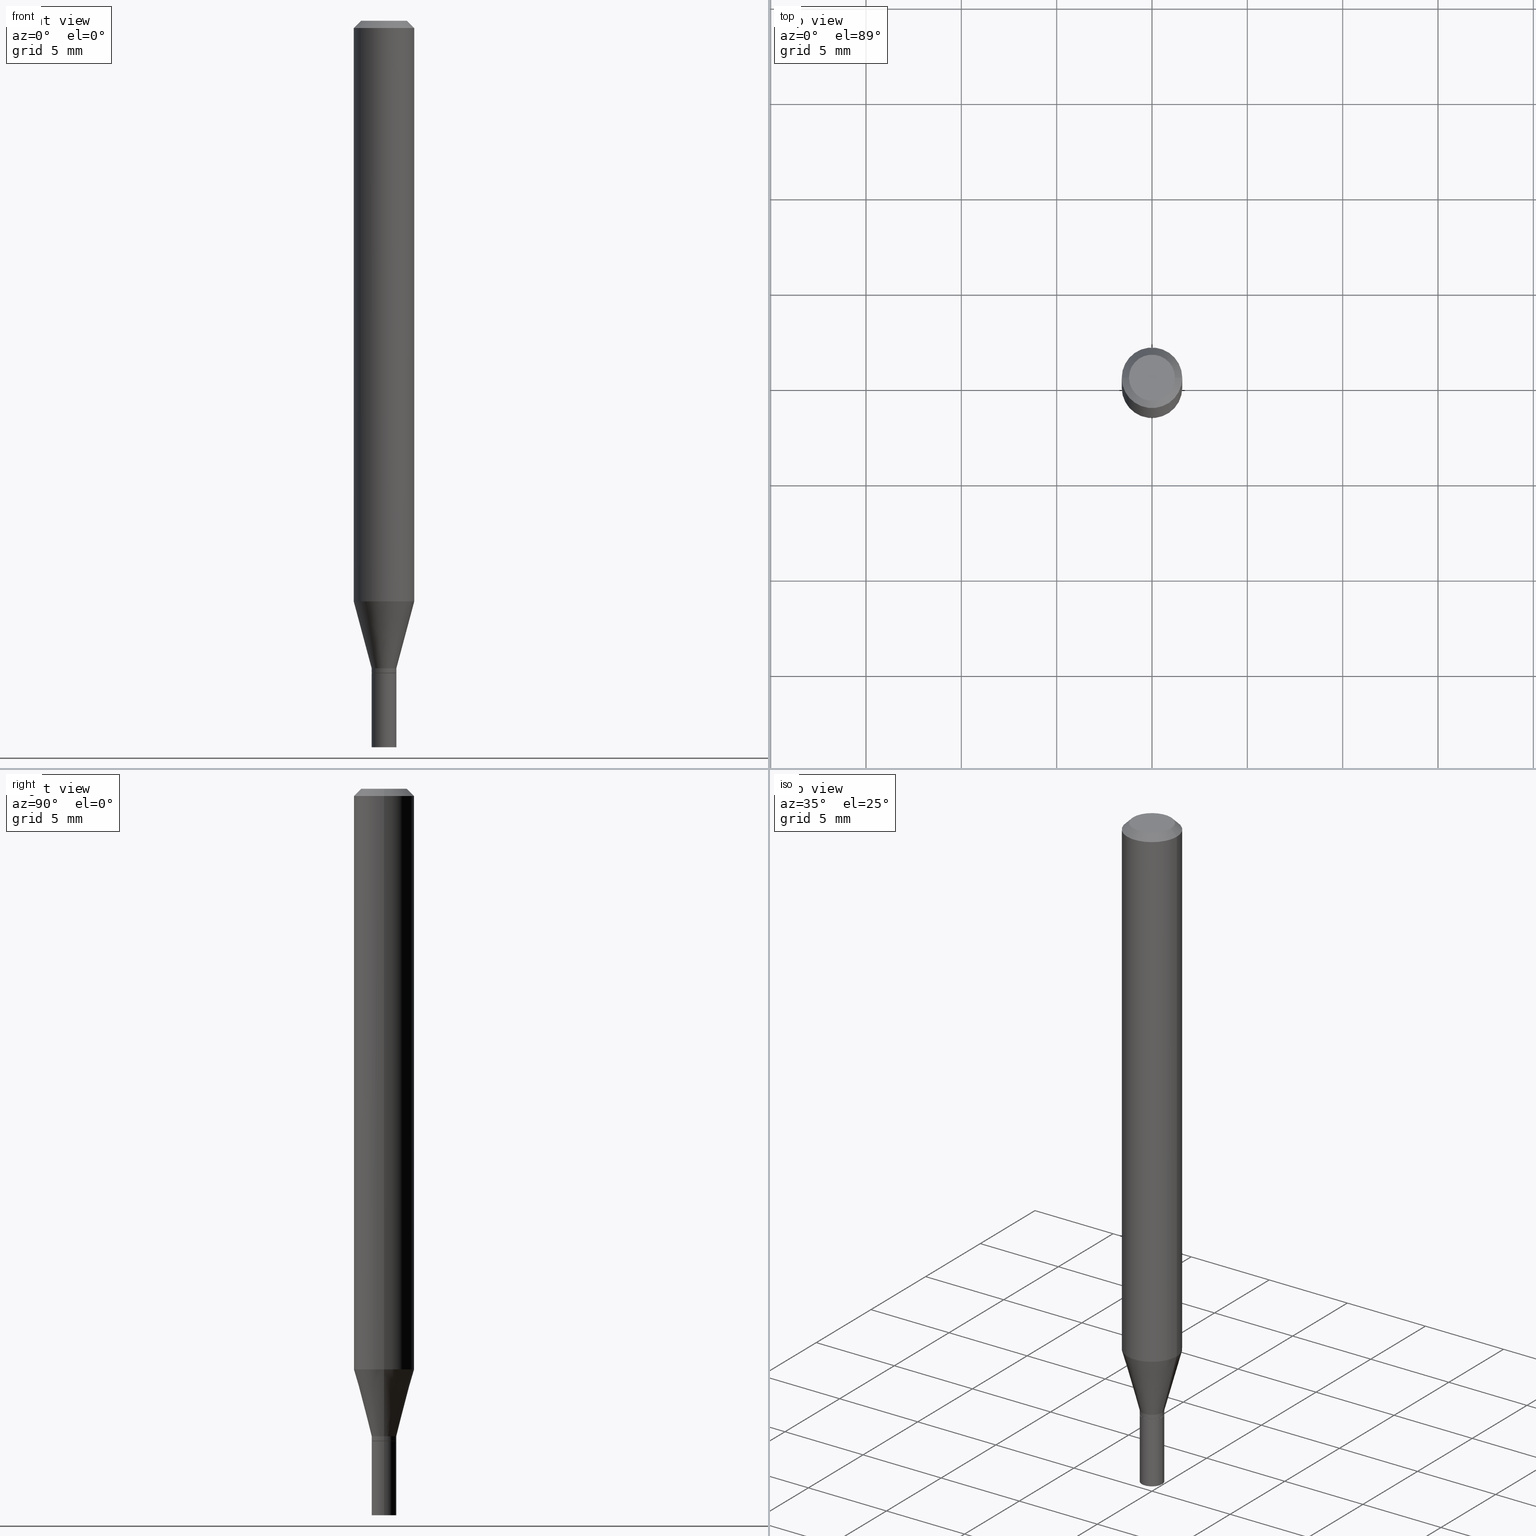
[diagram: canonical four-view strip — front | top / right | iso, engineering-drawing reading convention]
A machine part, canonical four-view strip (front | top / right | iso — engineering-drawing reading convention). The complete STEP part file that produces these views, byte-faithful:
ISO-10303-21;
HEADER;
FILE_DESCRIPTION (( 'STEP AP203' ),
    '1' );
FILE_NAME ('02446.STEP',
    '2024-03-18T20:38:47',
    ( '' ),
    ( '' ),
    'SwSTEP 2.0',
    'SolidWorks 2023',
    '' );
FILE_SCHEMA (( 'CONFIG_CONTROL_DESIGN' ));
ENDSEC;

DATA;
#1 = EDGE_LOOP ( 'NONE', ( #445, #239, #109, #463 ) ) ;
#2 = DIRECTION ( 'NONE',  ( 1.000000000000000000, -6.982962677686267499E-15, 4.852736867747366768E-29 ) ) ;
#3 = AXIS2_PLACEMENT_3D ( 'NONE', #390, #364, #92 ) ;
#4 = DIRECTION ( 'NONE',  ( -2.445468806185136597E-29, 3.491481338843145583E-15, 1.000000000000000000 ) ) ;
#5 = CARTESIAN_POINT ( 'NONE',  ( 3.294046481931379390E-29, -4.703025363421717574E-15, -1.347000000000000197 ) ) ;
#6 = CALENDAR_DATE ( 2024, 18, 3 ) ;
#7 = ORIENTED_EDGE ( 'NONE', *, *, #15, .F. ) ;
#8 = APPROVAL_ROLE ( '' ) ;
#9 = CARTESIAN_POINT ( 'NONE',  ( 0.000000000000000000, 0.000000000000000000, 0.000000000000000000 ) ) ;
#10 = APPROVAL_DATE_TIME ( #271, #136 ) ;
#11 = VERTEX_POINT ( 'NONE', #54 ) ;
#12 = CARTESIAN_POINT ( 'NONE',  ( -0.02499999999999999792, -4.522740452307581958E-15, -1.347000000000000197 ) ) ;
#13 = VECTOR ( 'NONE', #104, 39.37007874015748143 ) ;
#14 = ORIENTED_EDGE ( 'NONE', *, *, #322, .F. ) ;
#15 = EDGE_CURVE ( 'NONE', #181, #435, #58, .T. ) ;
#16 = CARTESIAN_POINT ( 'NONE',  ( 3.269591793869527285E-29, -4.668110550033285925E-15, -1.336999999999999966 ) ) ;
#17 = EDGE_CURVE ( 'NONE', #181, #381, #105, .T. ) ;
#18 = DIRECTION ( 'NONE',  ( -2.445468806185136597E-29, 3.491481338843145583E-15, 1.000000000000000000 ) ) ;
#19 = APPROVAL_STATUS ( 'not_yet_approved' ) ;
#20 = ORIENTED_EDGE ( 'NONE', *, *, #281, .T. ) ;
#21 = VECTOR ( 'NONE', #202, 39.37007874015748143 ) ;
#22 = ADVANCED_FACE ( 'NONE', ( #196 ), #80, .T. ) ;
#23 = DIRECTION ( 'NONE',  ( -2.445468806185136597E-29, 3.491481338843145583E-15, 1.000000000000000000 ) ) ;
#24 = DIRECTION ( 'NONE',  ( 1.000000000000000000, -6.982962677686258822E-15, 0.000000000000000000 ) ) ;
#25 = CARTESIAN_POINT ( 'NONE',  ( 1.338927666171699620E-44, -1.911633854693045944E-30, -5.475136966724958768E-16 ) ) ;
#26 = VECTOR ( 'NONE', #347, 39.37007874015748143 ) ;
#27 = DIRECTION ( 'NONE',  ( -2.445468806185136597E-29, 3.491481338843145583E-15, 1.000000000000000000 ) ) ;
#28 = CC_DESIGN_APPROVAL ( #337, ( #410 ) ) ;
#29 = CIRCLE ( 'NONE', #213, 0.02549999999999992203 ) ;
#30 = CARTESIAN_POINT ( 'NONE',  ( 3.294046481931379390E-29, -4.703025363421717574E-15, -1.347000000000000197 ) ) ;
#31 = DIRECTION ( 'NONE',  ( 1.000000000000000000, -6.982962677686258822E-15, 0.000000000000000000 ) ) ;
#32 = EDGE_CURVE ( 'NONE', #381, #181, #64, .T. ) ;
#33 = EDGE_LOOP ( 'NONE', ( #262, #149, #331, #69 ) ) ;
#34 = CONICAL_SURFACE ( 'NONE', #193, 0.02499999999999999792, 0.7853981633974739252 ) ;
#35 = ORIENTED_EDGE ( 'NONE', *, *, #230, .F. ) ;
#36 = FACE_OUTER_BOUND ( 'NONE', #373, .T. ) ;
#37 = CARTESIAN_POINT ( 'NONE',  ( 3.294046481931379390E-29, -4.703025363421717574E-15, -1.347000000000000197 ) ) ;
#38 = ORIENTED_EDGE ( 'NONE', *, *, #346, .T. ) ;
#39 = EDGE_CURVE ( 'NONE', #11, #381, #417, .T. ) ;
#40 = ORIENTED_EDGE ( 'NONE', *, *, #201, .T. ) ;
#41 = EDGE_CURVE ( 'NONE', #225, #465, #79, .T. ) ;
#42 = ORIENTED_EDGE ( 'NONE', *, *, #281, .F. ) ;
#43 = PLANE ( 'NONE',  #275 ) ;
#44 = DIRECTION ( 'NONE',  ( 1.000000000000000000, -6.982962677686258822E-15, 0.000000000000000000 ) ) ;
#45 = APPLICATION_PROTOCOL_DEFINITION ( 'international standard', 'config_control_design', 1994, #169 ) ;
#46 = DIRECTION ( 'NONE',  ( -2.445468806185136877E-29, 3.491481338843145188E-15, 1.000000000000000000 ) ) ;
#47 = VERTEX_POINT ( 'NONE', #279 ) ;
#48 = CC_DESIGN_PERSON_AND_ORGANIZATION_ASSIGNMENT ( #412, #235, ( #244 ) ) ;
#49 = ADVANCED_FACE ( 'NONE', ( #422 ), #153, .T. ) ;
#50 = VECTOR ( 'NONE', #452, 39.37007874015748143 ) ;
#51 = EDGE_LOOP ( 'NONE', ( #339, #236, #310, #272 ) ) ;
#52 = DIRECTION ( 'NONE',  ( -2.445468806185136597E-29, 3.491481338843145583E-15, 1.000000000000000000 ) ) ;
#53 = PERSON_AND_ORGANIZATION ( #366, #137 ) ;
#54 = CARTESIAN_POINT ( 'NONE',  ( 0.02549999999999992203, -4.879345171033294957E-15, -1.346500000000000252 ) ) ;
#55 = DIRECTION ( 'NONE',  ( -1.000000000000000000, 6.982962677686265922E-15, -4.876176775795935793E-29 ) ) ;
#56 = DIRECTION ( 'NONE',  ( 0.2588190451025211836, 1.565188264969622559E-15, 0.9659258262890679791 ) ) ;
#57 = ADVANCED_FACE ( 'NONE', ( #204 ), #166, .T. ) ;
#58 = LINE ( 'NONE', #270, #232 ) ;
#59 = AXIS2_PLACEMENT_3D ( 'NONE', #147, #409, #113 ) ;
#60 = CALENDAR_DATE ( 2024, 18, 3 ) ;
#61 = CARTESIAN_POINT ( 'NONE',  ( 0.02499999999999999792, -4.877599430363874242E-15, -1.347000000000000197 ) ) ;
#62 = DIRECTION ( 'NONE',  ( -2.445468806185136597E-29, 3.491481338843145583E-15, 1.000000000000000000 ) ) ;
#63 = CC_DESIGN_DATE_AND_TIME_ASSIGNMENT ( #383, #129, ( #323 ) ) ;
#64 = CIRCLE ( 'NONE', #146, 0.02549999999999992203 ) ;
#65 = DIRECTION ( 'NONE',  ( 1.000000000000000000, -6.982962677686266711E-15, 0.000000000000000000 ) ) ;
#66 = CARTESIAN_POINT ( 'NONE',  ( 3.668203209277705088E-31, -5.237222008264718399E-17, -0.01499999999999999944 ) ) ;
#67 = ADVANCED_FACE ( 'NONE', ( #206 ), #431, .F. ) ;
#68 = ORIENTED_EDGE ( 'NONE', *, *, #182, .F. ) ;
#69 = ORIENTED_EDGE ( 'NONE', *, *, #402, .F. ) ;
#70 = AXIS2_PLACEMENT_3D ( 'NONE', #249, #397, #65 ) ;
#71 = LOCAL_TIME ( 16, 38, 47.00000000000000000, #245 ) ;
#72 = ORIENTED_EDGE ( 'NONE', *, *, #231, .T. ) ;
#73 = CARTESIAN_POINT ( 'NONE',  ( 0.000000000000000000, 0.000000000000000000, 0.000000000000000000 ) ) ;
#74 = ORIENTED_EDGE ( 'NONE', *, *, #209, .F. ) ;
#75 = VECTOR ( 'NONE', #46, 39.37007874015748143 ) ;
#76 = EDGE_CURVE ( 'NONE', #333, #175, #443, .T. ) ;
#77 = CARTESIAN_POINT ( 'NONE',  ( 1.338927666171699620E-44, -1.911633854693045944E-30, -5.475136966724958768E-16 ) ) ;
#78 = FACE_OUTER_BOUND ( 'NONE', #33, .T. ) ;
#79 = CIRCLE ( 'NONE', #248, 0.02499999999999999792 ) ;
#80 = CYLINDRICAL_SURFACE ( 'NONE', #304, 0.02549999999999992203 ) ;
#81 = DIRECTION ( 'NONE',  ( 2.438088387897960049E-29, -3.491481338843145188E-15, -1.000000000000000000 ) ) ;
#82 = LINE ( 'NONE', #227, #75 ) ;
#83 = COORDINATED_UNIVERSAL_TIME_OFFSET ( 5, 0, .BEHIND. ) ;
#84 = EDGE_CURVE ( 'NONE', #365, #11, #451, .T. ) ;
#85 = EDGE_LOOP ( 'NONE', ( #229, #433, #257, #40 ) ) ;
#86 = ORIENTED_EDGE ( 'NONE', *, *, #187, .T. ) ;
#87 = COORDINATED_UNIVERSAL_TIME_OFFSET ( 5, 0, .BEHIND. ) ;
#88 = CARTESIAN_POINT ( 'NONE',  ( 0.02549999999999992203, -1.780655482809992805E-16, 1.243425077827959823E-30 ) ) ;
#89 = DIRECTION ( 'NONE',  ( -2.445468806185136877E-29, 3.491481338843145188E-15, 1.000000000000000000 ) ) ;
#90 = EDGE_LOOP ( 'NONE', ( #316, #174, #86, #437 ) ) ;
#91 = PERSON_AND_ORGANIZATION ( #366, #137 ) ;
#92 = DIRECTION ( 'NONE',  ( 1.000000000000000000, -6.982962677686275388E-15, 0.000000000000000000 ) ) ;
#93 = VECTOR ( 'NONE', #298, 39.37007874015748143 ) ;
#94 = CC_DESIGN_APPROVAL ( #136, ( #244 ) ) ;
#95 = DIRECTION ( 'NONE',  ( -2.438088387897960049E-29, 3.491481338843145188E-15, 1.000000000000000000 ) ) ;
#96 = CIRCLE ( 'NONE', #176, 0.02499999999999999792 ) ;
#97 = EDGE_CURVE ( 'NONE', #118, #441, #372, .T. ) ;
#98 = EDGE_CURVE ( 'NONE', #441, #297, #164, .T. ) ;
#99 = APPLICATION_CONTEXT ( 'configuration controlled 3d designs of mechanical parts and assemblies' ) ;
#100 = EDGE_CURVE ( 'NONE', #297, #295, #200, .T. ) ;
#101 = FACE_OUTER_BOUND ( 'NONE', #85, .T. ) ;
#102 = AXIS2_PLACEMENT_3D ( 'NONE', #9, #318, #453 ) ;
#103 = PERSON_AND_ORGANIZATION ( #366, #137 ) ;
#104 = DIRECTION ( 'NONE',  ( -2.445468806185136877E-29, 3.491481338843145188E-15, 1.000000000000000000 ) ) ;
#105 = CIRCLE ( 'NONE', #223, 0.02549999999999992203 ) ;
#106 = CC_DESIGN_PERSON_AND_ORGANIZATION_ASSIGNMENT ( #122, #269, ( #244 ) ) ;
#107 = ORIENTED_EDGE ( 'NONE', *, *, #41, .F. ) ;
#108 = FACE_OUTER_BOUND ( 'NONE', #90, .T. ) ;
#109 = ORIENTED_EDGE ( 'NONE', *, *, #230, .T. ) ;
#110 = DIRECTION ( 'NONE',  ( -2.445468806185136597E-29, 3.491481338843145583E-15, 1.000000000000000000 ) ) ;
#111 = ORIENTED_EDGE ( 'NONE', *, *, #160, .T. ) ;
#112 = CIRCLE ( 'NONE', #286, 0.02549999999999999836 ) ;
#113 = DIRECTION ( 'NONE',  ( 1.000000000000000000, -6.982962677686267499E-15, 4.876176775795935793E-29 ) ) ;
#114 = EDGE_LOOP ( 'NONE', ( #72, #20, #222, #184 ) ) ;
#115 = CARTESIAN_POINT ( 'NONE',  ( 0.02549999999999992203, -4.846176098314284811E-15, -1.336999999999999966 ) ) ;
#116 = EDGE_LOOP ( 'NONE', ( #388, #216, #305, #349 ) ) ;
#117 = CARTESIAN_POINT ( 'NONE',  ( 0.04749999999999999362, -4.035134999187587991E-16, -5.475136966724933130E-16 ) ) ;
#118 = VERTEX_POINT ( 'NONE', #246 ) ;
#119 =( GEOMETRIC_REPRESENTATION_CONTEXT ( 3 ) GLOBAL_UNCERTAINTY_ASSIGNED_CONTEXT ( ( #439 ) ) GLOBAL_UNIT_ASSIGNED_CONTEXT ( ( #307, #419, #276 ) ) REPRESENTATION_CONTEXT ( 'NONE', 'WORKASPACE' ) );
#120 = AXIS2_PLACEMENT_3D ( 'NONE', #250, #359, #291 ) ;
#121 = ADVANCED_FACE ( 'NONE', ( #101 ), #266, .T. ) ;
#122 = PERSON_AND_ORGANIZATION ( #366, #137 ) ;
#123 = ORIENTED_EDGE ( 'NONE', *, *, #308, .F. ) ;
#124 = COORDINATED_UNIVERSAL_TIME_OFFSET ( 5, 0, .BEHIND. ) ;
#125 = ORIENTED_EDGE ( 'NONE', *, *, #255, .T. ) ;
#126 = DIRECTION ( 'NONE',  ( -0.2588190451025211836, 5.211531920934547886E-15, 0.9659258262890679791 ) ) ;
#127 = DIRECTION ( 'NONE',  ( -0.7071067811865656694, 7.493145998870420424E-15, 0.7071067811865294761 ) ) ;
#128 = AXIS2_PLACEMENT_3D ( 'NONE', #362, #62, #31 ) ;
#129 = DATE_TIME_ROLE ( 'classification_date' ) ;
#130 = DIRECTION ( 'NONE',  ( -2.445468806185136597E-29, 3.491481338843145583E-15, 1.000000000000000000 ) ) ;
#131 = PERSON_AND_ORGANIZATION ( #366, #137 ) ;
#132 = DIRECTION ( 'NONE',  ( 1.000000000000000000, -6.982962677686266711E-15, 0.000000000000000000 ) ) ;
#133 = CARTESIAN_POINT ( 'NONE',  ( 0.02549999999999992203, -4.846176098314284811E-15, -1.336999999999999966 ) ) ;
#134 = DATE_AND_TIME ( #455, #71 ) ;
#135 = CARTESIAN_POINT ( 'NONE',  ( 3.668203209277705088E-31, -5.237222008264718399E-17, -0.01499999999999999944 ) ) ;
#136 = APPROVAL ( #148, 'UNSPECIFIED' ) ;
#137 = ORGANIZATION ( 'UNSPECIFIED', 'UNSPECIFIED', '' ) ;
#138 = AXIS2_PLACEMENT_3D ( 'NONE', #321, #428, #429 ) ;
#139 = DATE_AND_TIME ( #60, #336 ) ;
#140 = DIRECTION ( 'NONE',  ( -1.000000000000000000, 6.982962677686266711E-15, 0.000000000000000000 ) ) ;
#141 = LINE ( 'NONE', #430, #13 ) ;
#142 = LINE ( 'NONE', #61, #21 ) ;
#143 = ORIENTED_EDGE ( 'NONE', *, *, #177, .T. ) ;
#144 = CARTESIAN_POINT ( 'NONE',  ( 3.668203209277705088E-31, -5.237222008264718399E-17, -0.01499999999999999944 ) ) ;
#145 = EDGE_LOOP ( 'NONE', ( #42, #219, #143, #211 ) ) ;
#146 = AXIS2_PLACEMENT_3D ( 'NONE', #377, #313, #274 ) ;
#147 = CARTESIAN_POINT ( 'NONE',  ( 0.000000000000000000, 0.000000000000000000, 0.000000000000000000 ) ) ;
#148 = APPROVAL_STATUS ( 'not_yet_approved' ) ;
#149 = ORIENTED_EDGE ( 'NONE', *, *, #98, .T. ) ;
#150 = MANIFOLD_SOLID_BREP ( 'Body-Move/Copy2[2]', #436 ) ;
#151 = DIRECTION ( 'NONE',  ( 1.000000000000000000, -6.982962677686255667E-15, 0.000000000000000000 ) ) ;
#152 = ADVANCED_FACE ( 'NONE', ( #324 ), #163, .T. ) ;
#153 = CYLINDRICAL_SURFACE ( 'NONE', #338, 0.02549999999999999836 ) ;
#154 = AXIS2_PLACEMENT_3D ( 'NONE', #73, #218, #212 ) ;
#155 = CIRCLE ( 'NONE', #265, 0.02549999999999999836 ) ;
#156 = DIRECTION ( 'NONE',  ( -2.445468806185136597E-29, 3.491481338843145583E-15, 1.000000000000000000 ) ) ;
#157 = EDGE_LOOP ( 'NONE', ( #254, #161, #68, #408 ) ) ;
#158 = CARTESIAN_POINT ( 'NONE',  ( 0.000000000000000000, 0.000000000000000000, 0.000000000000000000 ) ) ;
#159 = LINE ( 'NONE', #133, #179 ) ;
#160 = EDGE_CURVE ( 'NONE', #47, #251, #112, .T. ) ;
#161 = ORIENTED_EDGE ( 'NONE', *, *, #15, .T. ) ;
#162 = CARTESIAN_POINT ( 'NONE',  ( 0.000000000000000000, 0.000000000000000000, 0.000000000000000000 ) ) ;
#163 = CONICAL_SURFACE ( 'NONE', #191, 0.02549999999999992203, 0.2617993877991499074 ) ;
#164 = LINE ( 'NONE', #456, #356 ) ;
#165 = CARTESIAN_POINT ( 'NONE',  ( -0.06250000000000000000, -1.675090038828441136E-15, -0.01499999999999999944 ) ) ;
#166 = CYLINDRICAL_SURFACE ( 'NONE', #120, 0.06250000000000000000 ) ;
#167 = ADVANCED_FACE ( 'NONE', ( #247 ), #457, .F. ) ;
#168 = AXIS2_PLACEMENT_3D ( 'NONE', #420, #156, #460 ) ;
#169 = APPLICATION_CONTEXT ( 'configuration controlled 3d designs of mechanical parts and assemblies' ) ;
#170 = DIRECTION ( 'NONE',  ( -2.445468806185136597E-29, 3.491481338843145583E-15, 1.000000000000000000 ) ) ;
#171 = DIRECTION ( 'NONE',  ( 1.000000000000000000, -6.982962677686265922E-15, 4.876176775795935793E-29 ) ) ;
#172 = CIRCLE ( 'NONE', #240, 0.04749999999999999362 ) ;
#173 = VECTOR ( 'NONE', #466, 39.37007874015748854 ) ;
#174 = ORIENTED_EDGE ( 'NONE', *, *, #322, .T. ) ;
#175 = VERTEX_POINT ( 'NONE', #327 ) ;
#176 = AXIS2_PLACEMENT_3D ( 'NONE', #382, #52, #282 ) ;
#177 = EDGE_CURVE ( 'NONE', #465, #11, #142, .T. ) ;
#178 = DIRECTION ( 'NONE',  ( -2.445468806185136597E-29, 3.491481338843145583E-15, 1.000000000000000000 ) ) ;
#179 = VECTOR ( 'NONE', #56, 39.37007874015748854 ) ;
#180 = ORIENTED_EDGE ( 'NONE', *, *, #160, .F. ) ;
#181 = VERTEX_POINT ( 'NONE', #226 ) ;
#182 = EDGE_CURVE ( 'NONE', #217, #435, #444, .T. ) ;
#183 = ADVANCED_FACE ( 'NONE', ( #186 ), #243, .T. ) ;
#184 = ORIENTED_EDGE ( 'NONE', *, *, #177, .F. ) ;
#185 = FACE_OUTER_BOUND ( 'NONE', #51, .T. ) ;
#186 = FACE_OUTER_BOUND ( 'NONE', #145, .T. ) ;
#187 = EDGE_CURVE ( 'NONE', #217, #297, #141, .T. ) ;
#188 = CARTESIAN_POINT ( 'NONE',  ( 3.294046481931379390E-29, -4.703025363421717574E-15, -1.347000000000000197 ) ) ;
#189 = LINE ( 'NONE', #277, #26 ) ;
#190 = EDGE_LOOP ( 'NONE', ( #264, #107 ) ) ;
#191 = AXIS2_PLACEMENT_3D ( 'NONE', #283, #210, #425 ) ;
#192 = APPROVAL_PERSON_ORGANIZATION ( #341, #136, #299 ) ;
#193 = AXIS2_PLACEMENT_3D ( 'NONE', #37, #411, #309 ) ;
#194 = DIRECTION ( 'NONE',  ( -2.445468806185136597E-29, 3.491481338843145583E-15, 1.000000000000000000 ) ) ;
#195 = DIRECTION ( 'NONE',  ( 1.000000000000000000, -6.982962677686275388E-15, 0.000000000000000000 ) ) ;
#196 = FACE_OUTER_BOUND ( 'NONE', #384, .T. ) ;
#197 = CARTESIAN_POINT ( 'NONE',  ( 0.000000000000000000, 0.000000000000000000, 0.000000000000000000 ) ) ;
#198 = MECHANICAL_CONTEXT ( 'NONE', #169, 'mechanical' ) ;
#199 = CONICAL_SURFACE ( 'NONE', #363, 0.06250000000000000000, 0.7853981633974667087 ) ;
#200 = CIRCLE ( 'NONE', #462, 0.06250000000000000000 ) ;
#201 = EDGE_CURVE ( 'NONE', #295, #297, #242, .T. ) ;
#202 = DIRECTION ( 'NONE',  ( 0.7071067811865656694, -2.468850131082446387E-15, 0.7071067811865294761 ) ) ;
#203 = VECTOR ( 'NONE', #127, 39.37007874015748143 ) ;
#204 = FACE_OUTER_BOUND ( 'NONE', #116, .T. ) ;
#205 = APPROVAL_PERSON_ORGANIZATION ( #53, #369, #278 ) ;
#206 = FACE_OUTER_BOUND ( 'NONE', #399, .T. ) ;
#207 = PRODUCT ( '02446', '02446', '', ( #198 ) ) ;
#208 = ADVANCED_FACE ( 'NONE', ( #368 ), #34, .T. ) ;
#209 = EDGE_CURVE ( 'NONE', #175, #333, #155, .T. ) ;
#210 = DIRECTION ( 'NONE',  ( -2.445468806185136597E-29, 3.491481338843145583E-15, 1.000000000000000000 ) ) ;
#211 = ORIENTED_EDGE ( 'NONE', *, *, #84, .F. ) ;
#212 = DIRECTION ( 'NONE',  ( 1.000000000000000000, -6.982962677686266711E-15, 4.876176775795935793E-29 ) ) ;
#213 = AXIS2_PLACEMENT_3D ( 'NONE', #332, #110, #438 ) ;
#214 = AXIS2_PLACEMENT_3D ( 'NONE', #66, #287, #140 ) ;
#215 = CC_DESIGN_DATE_AND_TIME_ASSIGNMENT ( #344, #407, ( #410 ) ) ;
#216 = ORIENTED_EDGE ( 'NONE', *, *, #300, .T. ) ;
#217 = VERTEX_POINT ( 'NONE', #273 ) ;
#218 = DIRECTION ( 'NONE',  ( -2.445468806185136597E-29, 3.491481338843145583E-15, 1.000000000000000000 ) ) ;
#219 = ORIENTED_EDGE ( 'NONE', *, *, #41, .T. ) ;
#220 = CYLINDRICAL_SURFACE ( 'NONE', #59, 0.02549999999999992203 ) ;
#221 = ADVANCED_FACE ( 'NONE', ( #415 ), #319, .T. ) ;
#222 = ORIENTED_EDGE ( 'NONE', *, *, #328, .F. ) ;
#223 = AXIS2_PLACEMENT_3D ( 'NONE', #16, #194, #44 ) ;
#224 = FACE_OUTER_BOUND ( 'NONE', #449, .T. ) ;
#225 = VERTEX_POINT ( 'NONE', #12 ) ;
#226 = CARTESIAN_POINT ( 'NONE',  ( -0.02549999999999992203, -4.114409609919379013E-15, -1.336999999999999966 ) ) ;
#227 = CARTESIAN_POINT ( 'NONE',  ( -0.06250000000000000000, 4.440892098500626162E-16, -3.074334431409316114E-30 ) ) ;
#228 = DIRECTION ( 'NONE',  ( -2.445468806185136597E-29, 3.491481338843145583E-15, 1.000000000000000000 ) ) ;
#229 = ORIENTED_EDGE ( 'NONE', *, *, #98, .F. ) ;
#230 = EDGE_CURVE ( 'NONE', #333, #47, #423, .T. ) ;
#231 = EDGE_CURVE ( 'NONE', #465, #225, #96, .T. ) ;
#232 = VECTOR ( 'NONE', #126, 39.37007874015748854 ) ;
#233 = CARTESIAN_POINT ( 'NONE',  ( 0.02499999999999999792, -4.877599430363874242E-15, -1.347000000000000197 ) ) ;
#234 = DIRECTION ( 'NONE',  ( 1.000000000000000000, -6.982962677686266711E-15, 4.876176775795935793E-29 ) ) ;
#235 = PERSON_AND_ORGANIZATION_ROLE ( 'design_supplier' ) ;
#236 = ORIENTED_EDGE ( 'NONE', *, *, #308, .T. ) ;
#237 = CARTESIAN_POINT ( 'NONE',  ( 0.02549999999999999836, -1.780655482809997982E-16, 1.243425077827963501E-30 ) ) ;
#238 = PERSON_AND_ORGANIZATION_ROLE ( 'classification_officer' ) ;
#239 = ORIENTED_EDGE ( 'NONE', *, *, #209, .T. ) ;
#240 = AXIS2_PLACEMENT_3D ( 'NONE', #77, #178, #2 ) ;
#241 = CARTESIAN_POINT ( 'NONE',  ( 2.931907082048241438E-29, -4.185986277274360030E-15, -1.198914120119951576 ) ) ;
#242 = CIRCLE ( 'NONE', #70, 0.06250000000000000000 ) ;
#243 = CONICAL_SURFACE ( 'NONE', #317, 0.02499999999999999792, 0.7853981633974739252 ) ;
#244 = PRODUCT_DEFINITION_FORMATION_WITH_SPECIFIED_SOURCE ( 'ANY', '', #207, .NOT_KNOWN. ) ;
#245 = COORDINATED_UNIVERSAL_TIME_OFFSET ( 5, 0, .BEHIND. ) ;
#246 = CARTESIAN_POINT ( 'NONE',  ( -0.04749999999999999362, 3.578768372314200645E-16, -5.475136966724983420E-16 ) ) ;
#247 = FACE_OUTER_BOUND ( 'NONE', #190, .T. ) ;
#248 = AXIS2_PLACEMENT_3D ( 'NONE', #188, #130, #151 ) ;
#249 = CARTESIAN_POINT ( 'NONE',  ( 3.668203209277705088E-31, -5.237222008264718399E-17, -0.01499999999999999944 ) ) ;
#250 = CARTESIAN_POINT ( 'NONE',  ( 0.000000000000000000, 0.000000000000000000, 0.000000000000000000 ) ) ;
#251 = VERTEX_POINT ( 'NONE', #376 ) ;
#252 = CARTESIAN_POINT ( 'NONE',  ( 1.780655482810327331E-16, 0.02549999999999529726, -1.347000000000000197 ) ) ;
#253 = ADVANCED_FACE ( 'NONE', ( #389 ), #352, .T. ) ;
#254 = ORIENTED_EDGE ( 'NONE', *, *, #32, .T. ) ;
#255 = EDGE_CURVE ( 'NONE', #381, #217, #159, .T. ) ;
#256 = DIRECTION ( 'NONE',  ( -2.438088387897960049E-29, 3.491481338843145188E-15, 1.000000000000000000 ) ) ;
#257 = ORIENTED_EDGE ( 'NONE', *, *, #402, .T. ) ;
#258 = CARTESIAN_POINT ( 'NONE',  ( -0.06250000000000000000, -3.741897067424298203E-15, -1.198914120119951576 ) ) ;
#259 = ORIENTED_EDGE ( 'NONE', *, *, #17, .T. ) ;
#260 = CARTESIAN_POINT ( 'NONE',  ( 0.02549999999999999836, -5.415287556545718640E-15, -1.500000000000000222 ) ) ;
#261 = DESIGN_CONTEXT ( 'detailed design', #99, 'design' ) ;
#262 = ORIENTED_EDGE ( 'NONE', *, *, #346, .F. ) ;
#263 = DIRECTION ( 'NONE',  ( 1.000000000000000000, -6.982962677686275388E-15, 0.000000000000000000 ) ) ;
#264 = ORIENTED_EDGE ( 'NONE', *, *, #231, .F. ) ;
#265 = AXIS2_PLACEMENT_3D ( 'NONE', #378, #385, #195 ) ;
#266 = CONICAL_SURFACE ( 'NONE', #214, 0.06250000000000000000, 0.7853981633974667087 ) ;
#267 = LOCAL_TIME ( 16, 38, 47.00000000000000000, #87 ) ;
#268 =( LENGTH_UNIT ( ) NAMED_UNIT ( * ) SI_UNIT ( $, .METRE. ) );
#269 = PERSON_AND_ORGANIZATION_ROLE ( 'creator' ) ;
#270 = CARTESIAN_POINT ( 'NONE',  ( -0.02549999999999992203, -4.486922152414460611E-15, -1.336999999999999966 ) ) ;
#271 = DATE_AND_TIME ( #6, #306 ) ;
#272 = ORIENTED_EDGE ( 'NONE', *, *, #39, .F. ) ;
#273 = CARTESIAN_POINT ( 'NONE',  ( 0.06250000000000000000, -4.622421444629751700E-15, -1.198914120119951576 ) ) ;
#274 = DIRECTION ( 'NONE',  ( 1.000000000000000000, -6.982962677686258822E-15, 0.000000000000000000 ) ) ;
#275 = AXIS2_PLACEMENT_3D ( 'NONE', #252, #81, #55 ) ;
#276 =( NAMED_UNIT ( * ) SI_UNIT ( $, .STERADIAN. ) SOLID_ANGLE_UNIT ( ) );
#277 = CARTESIAN_POINT ( 'NONE',  ( -0.02549999999999992203, 1.811883976188249934E-16, -1.254328448014996992E-30 ) ) ;
#278 = APPROVAL_ROLE ( '' ) ;
#279 = CARTESIAN_POINT ( 'NONE',  ( 0.02549999999999999836, -4.881090911702717249E-15, -1.347000000000000197 ) ) ;
#280 = APPLICATION_PROTOCOL_DEFINITION ( 'international standard', 'config_control_design', 1994, #99 ) ;
#281 = EDGE_CURVE ( 'NONE', #225, #365, #314, .T. ) ;
#282 = DIRECTION ( 'NONE',  ( 1.000000000000000000, -6.982962677686255667E-15, 0.000000000000000000 ) ) ;
#283 = CARTESIAN_POINT ( 'NONE',  ( 3.269591793869527285E-29, -4.668110550033285925E-15, -1.336999999999999966 ) ) ;
#284 = CARTESIAN_POINT ( 'NONE',  ( 3.294046481931379390E-29, -4.703025363421717574E-15, -1.347000000000000197 ) ) ;
#285 = AXIS2_PLACEMENT_3D ( 'NONE', #5, #301, #263 ) ;
#286 = AXIS2_PLACEMENT_3D ( 'NONE', #284, #290, #427 ) ;
#287 = DIRECTION ( 'NONE',  ( 2.445468806185136597E-29, -3.491481338843145583E-15, -1.000000000000000000 ) ) ;
#288 = SHAPE_DEFINITION_REPRESENTATION ( #357, #387 ) ;
#289 = APPROVAL_DATE_TIME ( #139, #337 ) ;
#290 = DIRECTION ( 'NONE',  ( -2.445468806185136597E-29, 3.491481338843145583E-15, 1.000000000000000000 ) ) ;
#291 = DIRECTION ( 'NONE',  ( 1.000000000000000000, -6.982962677686266711E-15, 4.876176775795935793E-29 ) ) ;
#292 = CLOSED_SHELL ( 'NONE', ( #49, #393, #221, #464 ) ) ;
#293 = PLANE ( 'NONE',  #426 ) ;
#294 = EDGE_LOOP ( 'NONE', ( #375, #413, #180, #35 ) ) ;
#295 = VERTEX_POINT ( 'NONE', #165 ) ;
#296 = CC_DESIGN_APPROVAL ( #369, ( #323 ) ) ;
#297 = VERTEX_POINT ( 'NONE', #320 ) ;
#298 = DIRECTION ( 'NONE',  ( -2.445468806185136877E-29, 3.491481338843145188E-15, 1.000000000000000000 ) ) ;
#299 = APPROVAL_ROLE ( '' ) ;
#300 = EDGE_CURVE ( 'NONE', #435, #295, #82, .T. ) ;
#301 = DIRECTION ( 'NONE',  ( -2.445468806185136597E-29, 3.491481338843145583E-15, 1.000000000000000000 ) ) ;
#302 = DIRECTION ( 'NONE',  ( 1.000000000000000000, -6.982962677686266711E-15, 4.876176775795935793E-29 ) ) ;
#303 = PERSON_AND_ORGANIZATION_ROLE ( 'design_owner' ) ;
#304 = AXIS2_PLACEMENT_3D ( 'NONE', #158, #228, #353 ) ;
#305 = ORIENTED_EDGE ( 'NONE', *, *, #100, .F. ) ;
#306 = LOCAL_TIME ( 16, 38, 47.00000000000000000, #83 ) ;
#307 =( CONVERSION_BASED_UNIT ( 'INCH', #311 ) LENGTH_UNIT ( ) NAMED_UNIT ( #379 ) );
#308 = EDGE_CURVE ( 'NONE', #365, #181, #189, .T. ) ;
#309 = DIRECTION ( 'NONE',  ( 1.000000000000000000, -6.982962677686255667E-15, 0.000000000000000000 ) ) ;
#310 = ORIENTED_EDGE ( 'NONE', *, *, #32, .F. ) ;
#311 = LENGTH_MEASURE_WITH_UNIT ( LENGTH_MEASURE( 0.02539999999999999897 ), #268 );
#312 = LOCAL_TIME ( 16, 38, 47.00000000000000000, #124 ) ;
#313 = DIRECTION ( 'NONE',  ( -2.445468806185136597E-29, 3.491481338843145583E-15, 1.000000000000000000 ) ) ;
#314 = LINE ( 'NONE', #450, #203 ) ;
#315 = CC_DESIGN_PERSON_AND_ORGANIZATION_ASSIGNMENT ( #131, #303, ( #207 ) ) ;
#316 = ORIENTED_EDGE ( 'NONE', *, *, #300, .F. ) ;
#317 = AXIS2_PLACEMENT_3D ( 'NONE', #30, #170, #326 ) ;
#318 = DIRECTION ( 'NONE',  ( 0.000000000000000000, 0.000000000000000000, 1.000000000000000000 ) ) ;
#319 = CYLINDRICAL_SURFACE ( 'NONE', #403, 0.02549999999999999836 ) ;
#320 = CARTESIAN_POINT ( 'NONE',  ( 0.06250000000000000000, -4.888073874380388472E-16, -0.01499999999999999944 ) ) ;
#321 = CARTESIAN_POINT ( 'NONE',  ( 3.316907271900976096E-16, 0.04749999999999999362, -4.396022119312973841E-16 ) ) ;
#322 = EDGE_CURVE ( 'NONE', #435, #217, #354, .T. ) ;
#323 = SECURITY_CLASSIFICATION ( '', '', #424 ) ;
#324 = FACE_OUTER_BOUND ( 'NONE', #414, .T. ) ;
#325 = VECTOR ( 'NONE', #89, 39.37007874015748143 ) ;
#326 = DIRECTION ( 'NONE',  ( 1.000000000000000000, -6.982962677686255667E-15, 0.000000000000000000 ) ) ;
#327 = CARTESIAN_POINT ( 'NONE',  ( -0.02549999999999999836, -4.788935288224391773E-15, -1.500000000000000222 ) ) ;
#328 = EDGE_CURVE ( 'NONE', #11, #365, #29, .T. ) ;
#329 = CIRCLE ( 'NONE', #285, 0.02549999999999999836 ) ;
#330 = AXIS2_PLACEMENT_3D ( 'NONE', #395, #95, #171 ) ;
#331 = ORIENTED_EDGE ( 'NONE', *, *, #100, .T. ) ;
#332 = CARTESIAN_POINT ( 'NONE',  ( 3.292823747528287150E-29, -4.701279622752296071E-15, -1.346500000000000252 ) ) ;
#333 = VERTEX_POINT ( 'NONE', #260 ) ;
#334 = DIRECTION ( 'NONE',  ( 1.000000000000000000, -6.982962677686265922E-15, 4.876176775795935793E-29 ) ) ;
#335 = ORIENTED_EDGE ( 'NONE', *, *, #97, .T. ) ;
#336 = LOCAL_TIME ( 16, 38, 47.00000000000000000, #442 ) ;
#337 = APPROVAL ( #342, 'UNSPECIFIED' ) ;
#338 = AXIS2_PLACEMENT_3D ( 'NONE', #197, #355, #302 ) ;
#339 = ORIENTED_EDGE ( 'NONE', *, *, #328, .T. ) ;
#340 = CYLINDRICAL_SURFACE ( 'NONE', #154, 0.06250000000000000000 ) ;
#341 = PERSON_AND_ORGANIZATION ( #366, #137 ) ;
#342 = APPROVAL_STATUS ( 'not_yet_approved' ) ;
#343 = DIRECTION ( 'NONE',  ( -1.000000000000000000, 6.982962677686266711E-15, 0.000000000000000000 ) ) ;
#344 = DATE_AND_TIME ( #370, #312 ) ;
#345 = ORIENTED_EDGE ( 'NONE', *, *, #17, .F. ) ;
#346 = EDGE_CURVE ( 'NONE', #441, #118, #172, .T. ) ;
#347 = DIRECTION ( 'NONE',  ( -2.445468806185136877E-29, 3.491481338843145188E-15, 1.000000000000000000 ) ) ;
#348 = ADVANCED_FACE ( 'NONE', ( #185 ), #220, .T. ) ;
#349 = ORIENTED_EDGE ( 'NONE', *, *, #187, .F. ) ;
#350 = ORIENTED_EDGE ( 'NONE', *, *, #459, .T. ) ;
#351 = CARTESIAN_POINT ( 'NONE',  ( 3.269591793869527285E-29, -4.668110550033285925E-15, -1.336999999999999966 ) ) ;
#352 = CONICAL_SURFACE ( 'NONE', #360, 0.02549999999999992203, 0.2617993877991499074 ) ;
#353 = DIRECTION ( 'NONE',  ( 1.000000000000000000, -6.982962677686267499E-15, 4.876176775795935793E-29 ) ) ;
#354 = CIRCLE ( 'NONE', #168, 0.06250000000000000000 ) ;
#355 = DIRECTION ( 'NONE',  ( -2.445468806185136597E-29, 3.491481338843145583E-15, 1.000000000000000000 ) ) ;
#356 = VECTOR ( 'NONE', #361, 39.37007874015748854 ) ;
#357 = PRODUCT_DEFINITION_SHAPE ( 'NONE', 'NONE',  #410 ) ;
#358 = DIRECTION ( 'NONE',  ( -2.445468806185136597E-29, 3.491481338843145583E-15, 1.000000000000000000 ) ) ;
#359 = DIRECTION ( 'NONE',  ( -2.445468806185136597E-29, 3.491481338843145583E-15, 1.000000000000000000 ) ) ;
#360 = AXIS2_PLACEMENT_3D ( 'NONE', #351, #18, #24 ) ;
#361 = DIRECTION ( 'NONE',  ( 0.7071067811865604513, -7.319954787623298644E-15, -0.7071067811865343611 ) ) ;
#362 = CARTESIAN_POINT ( 'NONE',  ( 3.292823747528287150E-29, -4.701279622752296071E-15, -1.346500000000000252 ) ) ;
#363 = AXIS2_PLACEMENT_3D ( 'NONE', #144, #404, #343 ) ;
#364 = DIRECTION ( 'NONE',  ( -2.445468806185136597E-29, 3.491481338843145583E-15, 1.000000000000000000 ) ) ;
#365 = VERTEX_POINT ( 'NONE', #406 ) ;
#366 = PERSON ( 'UNSPECIFIED', 'UNSPECIFIED', 'UNSPECIFIED', ('UNSPECIFIED'), ('UNSPECIFIED'), ('UNSPECIFIED') ) ;
#367 = CARTESIAN_POINT ( 'NONE',  ( -0.06250000000000000000, 3.840629472727444916E-16, -0.01499999999999999944 ) ) ;
#368 = FACE_OUTER_BOUND ( 'NONE', #114, .T. ) ;
#369 = APPROVAL ( #19, 'UNSPECIFIED' ) ;
#370 = CALENDAR_DATE ( 2024, 18, 3 ) ;
#371 = CARTESIAN_POINT ( 'NONE',  ( -0.02549999999999999836, 1.811883976188255358E-16, -1.254328448015001021E-30 ) ) ;
#372 = CIRCLE ( 'NONE', #391, 0.04749999999999999362 ) ;
#373 = EDGE_LOOP ( 'NONE', ( #440, #74 ) ) ;
#374 = DIRECTION ( 'NONE',  ( 1.000000000000000000, -6.982962677686262766E-15, 0.000000000000000000 ) ) ;
#375 = ORIENTED_EDGE ( 'NONE', *, *, #76, .T. ) ;
#376 = CARTESIAN_POINT ( 'NONE',  ( -0.02549999999999999836, -4.788935288224391773E-15, -1.347000000000000197 ) ) ;
#377 = CARTESIAN_POINT ( 'NONE',  ( 3.269591793869527285E-29, -4.668110550033285925E-15, -1.336999999999999966 ) ) ;
#378 = CARTESIAN_POINT ( 'NONE',  ( 3.668203209277704895E-29, -5.237222008264718177E-15, -1.500000000000000222 ) ) ;
#379 = DIMENSIONAL_EXPONENTS ( 1.000000000000000000, 0.000000000000000000, 0.000000000000000000, 0.000000000000000000, 0.000000000000000000, 0.000000000000000000, 0.000000000000000000 ) ;
#380 = AXIS2_PLACEMENT_3D ( 'NONE', #241, #4, #374 ) ;
#381 = VERTEX_POINT ( 'NONE', #115 ) ;
#382 = CARTESIAN_POINT ( 'NONE',  ( 3.294046481931379390E-29, -4.703025363421717574E-15, -1.347000000000000197 ) ) ;
#383 = DATE_AND_TIME ( #386, #267 ) ;
#384 = EDGE_LOOP ( 'NONE', ( #123, #405, #447, #345 ) ) ;
#385 = DIRECTION ( 'NONE',  ( -2.445468806185136597E-29, 3.491481338843145583E-15, 1.000000000000000000 ) ) ;
#386 = CALENDAR_DATE ( 2024, 18, 3 ) ;
#387 = ADVANCED_BREP_SHAPE_REPRESENTATION ( '02446', ( #461, #150, #102 ), #119 ) ;
#388 = ORIENTED_EDGE ( 'NONE', *, *, #182, .T. ) ;
#389 = FACE_OUTER_BOUND ( 'NONE', #157, .T. ) ;
#390 = CARTESIAN_POINT ( 'NONE',  ( 3.668203209277704895E-29, -5.237222008264718177E-15, -1.500000000000000222 ) ) ;
#391 = AXIS2_PLACEMENT_3D ( 'NONE', #25, #27, #394 ) ;
#392 = CC_DESIGN_PERSON_AND_ORGANIZATION_ASSIGNMENT ( #103, #396, ( #410 ) ) ;
#393 = ADVANCED_FACE ( 'NONE', ( #36 ), #293, .F. ) ;
#394 = DIRECTION ( 'NONE',  ( 1.000000000000000000, -6.982962677686267499E-15, 4.852736867747366768E-29 ) ) ;
#395 = CARTESIAN_POINT ( 'NONE',  ( 3.294046481931379390E-29, -4.703025363421717574E-15, -1.347000000000000197 ) ) ;
#396 = PERSON_AND_ORGANIZATION_ROLE ( 'creator' ) ;
#397 = DIRECTION ( 'NONE',  ( -2.445468806185136597E-29, 3.491481338843145583E-15, 1.000000000000000000 ) ) ;
#398 = LINE ( 'NONE', #371, #93 ) ;
#399 = EDGE_LOOP ( 'NONE', ( #335, #38 ) ) ;
#400 = LINE ( 'NONE', #367, #173 ) ;
#401 = APPROVAL_PERSON_ORGANIZATION ( #91, #337, #8 ) ;
#402 = EDGE_CURVE ( 'NONE', #118, #295, #400, .T. ) ;
#403 = AXIS2_PLACEMENT_3D ( 'NONE', #162, #358, #234 ) ;
#404 = DIRECTION ( 'NONE',  ( 2.445468806185136597E-29, -3.491481338843145583E-15, -1.000000000000000000 ) ) ;
#405 = ORIENTED_EDGE ( 'NONE', *, *, #84, .T. ) ;
#406 = CARTESIAN_POINT ( 'NONE',  ( -0.02549999999999992203, -4.520091225133471546E-15, -1.346500000000000252 ) ) ;
#407 = DATE_TIME_ROLE ( 'creation_date' ) ;
#408 = ORIENTED_EDGE ( 'NONE', *, *, #255, .F. ) ;
#409 = DIRECTION ( 'NONE',  ( -2.445468806185136597E-29, 3.491481338843145583E-15, 1.000000000000000000 ) ) ;
#410 = PRODUCT_DEFINITION ( 'UNKNOWN', '', #244, #261 ) ;
#411 = DIRECTION ( 'NONE',  ( -2.445468806185136597E-29, 3.491481338843145583E-15, 1.000000000000000000 ) ) ;
#412 = PERSON_AND_ORGANIZATION ( #366, #137 ) ;
#413 = ORIENTED_EDGE ( 'NONE', *, *, #446, .T. ) ;
#414 = EDGE_LOOP ( 'NONE', ( #7, #259, #125, #14 ) ) ;
#415 = FACE_OUTER_BOUND ( 'NONE', #1, .T. ) ;
#416 = PERSON_AND_ORGANIZATION ( #366, #137 ) ;
#417 = LINE ( 'NONE', #88, #50 ) ;
#418 = CC_DESIGN_SECURITY_CLASSIFICATION ( #323, ( #244 ) ) ;
#419 =( NAMED_UNIT ( * ) PLANE_ANGLE_UNIT ( ) SI_UNIT ( $, .RADIAN. ) );
#420 = CARTESIAN_POINT ( 'NONE',  ( 2.931907082048241438E-29, -4.185986277274360030E-15, -1.198914120119951576 ) ) ;
#421 = APPROVAL_DATE_TIME ( #134, #369 ) ;
#422 = FACE_OUTER_BOUND ( 'NONE', #294, .T. ) ;
#423 = LINE ( 'NONE', #237, #325 ) ;
#424 = SECURITY_CLASSIFICATION_LEVEL ( 'unclassified' ) ;
#425 = DIRECTION ( 'NONE',  ( 1.000000000000000000, -6.982962677686258822E-15, 0.000000000000000000 ) ) ;
#426 = AXIS2_PLACEMENT_3D ( 'NONE', #432, #256, #334 ) ;
#427 = DIRECTION ( 'NONE',  ( 1.000000000000000000, -6.982962677686275388E-15, 0.000000000000000000 ) ) ;
#428 = DIRECTION ( 'NONE',  ( 2.438088387897960049E-29, -3.491481338843145188E-15, -1.000000000000000000 ) ) ;
#429 = DIRECTION ( 'NONE',  ( -1.000000000000000000, 6.982962677686265922E-15, -4.876176775795935793E-29 ) ) ;
#430 = CARTESIAN_POINT ( 'NONE',  ( 0.06250000000000000000, -4.364351673553916694E-16, 3.047610484872459871E-30 ) ) ;
#431 = PLANE ( 'NONE',  #138 ) ;
#432 = CARTESIAN_POINT ( 'NONE',  ( 3.576687321579069994E-29, -5.368277968210015545E-15, -1.500000000000000222 ) ) ;
#433 = ORIENTED_EDGE ( 'NONE', *, *, #97, .F. ) ;
#434 = PRODUCT_RELATED_PRODUCT_CATEGORY ( 'detail', '', ( #207 ) ) ;
#435 = VERTEX_POINT ( 'NONE', #258 ) ;
#436 = CLOSED_SHELL ( 'NONE', ( #348, #208, #448, #57, #253, #152, #454, #121, #67, #167, #183, #22 ) ) ;
#437 = ORIENTED_EDGE ( 'NONE', *, *, #201, .F. ) ;
#438 = DIRECTION ( 'NONE',  ( 1.000000000000000000, -6.982962677686258822E-15, 0.000000000000000000 ) ) ;
#439 = UNCERTAINTY_MEASURE_WITH_UNIT (LENGTH_MEASURE( 1.000000000000000082E-05 ), #307, 'distance_accuracy_value', 'NONE');
#440 = ORIENTED_EDGE ( 'NONE', *, *, #76, .F. ) ;
#441 = VERTEX_POINT ( 'NONE', #117 ) ;
#442 = COORDINATED_UNIVERSAL_TIME_OFFSET ( 5, 0, .BEHIND. ) ;
#443 = CIRCLE ( 'NONE', #3, 0.02549999999999999836 ) ;
#444 = CIRCLE ( 'NONE', #380, 0.06250000000000000000 ) ;
#445 = ORIENTED_EDGE ( 'NONE', *, *, #446, .F. ) ;
#446 = EDGE_CURVE ( 'NONE', #175, #251, #398, .T. ) ;
#447 = ORIENTED_EDGE ( 'NONE', *, *, #39, .T. ) ;
#448 = ADVANCED_FACE ( 'NONE', ( #78 ), #199, .T. ) ;
#449 = EDGE_LOOP ( 'NONE', ( #111, #350 ) ) ;
#450 = CARTESIAN_POINT ( 'NONE',  ( -0.02499999999999999792, -4.525389679481692370E-15, -1.347000000000000197 ) ) ;
#451 = CIRCLE ( 'NONE', #128, 0.02549999999999992203 ) ;
#452 = DIRECTION ( 'NONE',  ( -2.445468806185136877E-29, 3.491481338843145188E-15, 1.000000000000000000 ) ) ;
#453 = DIRECTION ( 'NONE',  ( 1.000000000000000000, 0.000000000000000000, 0.000000000000000000 ) ) ;
#454 = ADVANCED_FACE ( 'NONE', ( #108 ), #340, .T. ) ;
#455 = CALENDAR_DATE ( 2024, 18, 3 ) ;
#456 = CARTESIAN_POINT ( 'NONE',  ( 0.06250000000000000000, -4.811533449433679005E-16, -0.01499999999999999944 ) ) ;
#457 = PLANE ( 'NONE',  #330 ) ;
#458 = CC_DESIGN_PERSON_AND_ORGANIZATION_ASSIGNMENT ( #416, #238, ( #323 ) ) ;
#459 = EDGE_CURVE ( 'NONE', #251, #47, #329, .T. ) ;
#460 = DIRECTION ( 'NONE',  ( 1.000000000000000000, -6.982962677686262766E-15, 0.000000000000000000 ) ) ;
#461 = MANIFOLD_SOLID_BREP ( 'Body-Move/Copy2[1]', #292 ) ;
#462 = AXIS2_PLACEMENT_3D ( 'NONE', #135, #23, #132 ) ;
#463 = ORIENTED_EDGE ( 'NONE', *, *, #459, .F. ) ;
#464 = ADVANCED_FACE ( 'NONE', ( #224 ), #43, .F. ) ;
#465 = VERTEX_POINT ( 'NONE', #233 ) ;
#466 = DIRECTION ( 'NONE',  ( -0.7071067811865604513, 2.468850131082393139E-15, -0.7071067811865343611 ) ) ;
ENDSEC;
END-ISO-10303-21;
